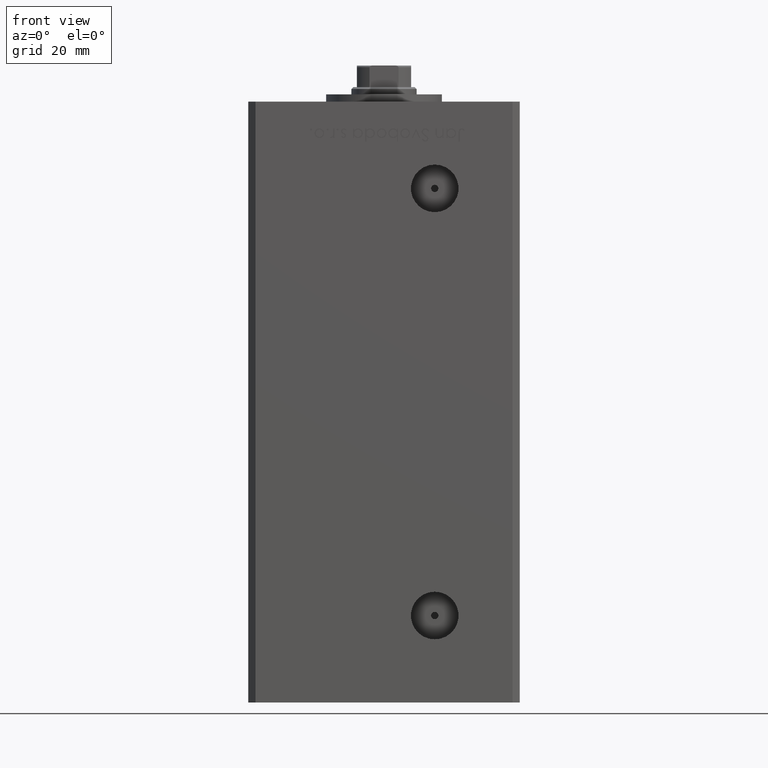
[diagram: clean part render]
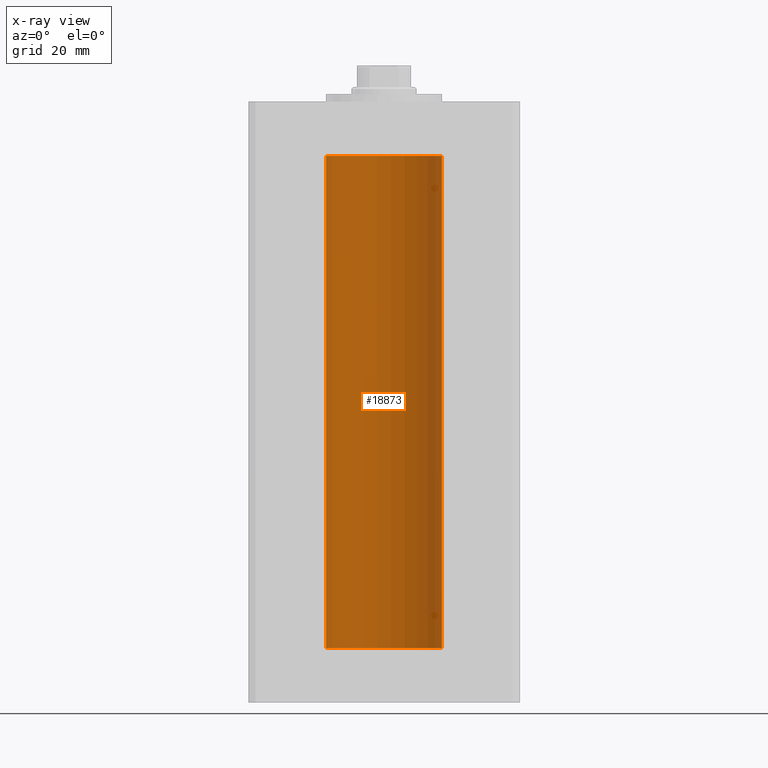
[diagram: x-ray — body ghosted, one internal face saturated and labeled with its STEP entity id]
A machine part, front view, then the same camera in x-ray: the body is ghosted and one INTERNAL B-rep face — a face not visible from any outside direction — is saturated and labeled: STEP entity #18873.
In plain terms, the highlighted cylindrical surface (partial cylindrical patch) has radius 16 mm, axis along (-0, -0, -1).
Its self-contained STEP definition (entity closure, byte-faithful):
#2634 = VERTEX_POINT ( 'NONE', #2691 ) ;
#2691 = CARTESIAN_POINT ( 'NONE',  ( -16.00000000000000000, 0.000000000000000000, 136.0000000000000000 ) ) ;
#6255 = EDGE_CURVE ( 'NONE', #2634, #16783, #40262, .T. ) ;
#8043 = CARTESIAN_POINT ( 'NONE',  ( 16.00000000000000000, 1.959434878635765131E-15, 136.0000000000000000 ) ) ;
#9560 = DIRECTION ( 'NONE',  ( 1.000000000000000000, 0.000000000000000000, 0.000000000000000000 ) ) ;
#12708 = VERTEX_POINT ( 'NONE', #13326 ) ;
#12932 = ORIENTED_EDGE ( 'NONE', *, *, #32817, .F. ) ;
#13326 = CARTESIAN_POINT ( 'NONE',  ( 16.00000000000000000, 1.959434878635765131E-15, 136.0000000000000000 ) ) ;
#14170 = DIRECTION ( 'NONE',  ( -0.000000000000000000, -0.000000000000000000, -1.000000000000000000 ) ) ;
#14496 = CARTESIAN_POINT ( 'NONE',  ( 0.000000000000000000, 0.000000000000000000, 136.0000000000000000 ) ) ;
#15631 = ORIENTED_EDGE ( 'NONE', *, *, #6255, .T. ) ;
#16783 = VERTEX_POINT ( 'NONE', #43213 ) ;
#17234 = CARTESIAN_POINT ( 'NONE',  ( 0.000000000000000000, 0.000000000000000000, 0.000000000000000000 ) ) ;
#17734 = VECTOR ( 'NONE', #19957, 1000.000000000000000 ) ;
#18873 = ADVANCED_FACE ( 'NONE', ( #34714 ), #26053, .F. ) ;
#19957 = DIRECTION ( 'NONE',  ( -0.000000000000000000, -0.000000000000000000, -1.000000000000000000 ) ) ;
#20563 = AXIS2_PLACEMENT_3D ( 'NONE', #17234, #40979, #9560 ) ;
#21446 = DIRECTION ( 'NONE',  ( -0.000000000000000000, -0.000000000000000000, -1.000000000000000000 ) ) ;
#21904 = DIRECTION ( 'NONE',  ( -0.000000000000000000, 0.000000000000000000, 1.000000000000000000 ) ) ;
#23123 = DIRECTION ( 'NONE',  ( -1.000000000000000000, 0.000000000000000000, 0.000000000000000000 ) ) ;
#23925 = AXIS2_PLACEMENT_3D ( 'NONE', #42143, #14170, #23123 ) ;
#24166 = CARTESIAN_POINT ( 'NONE',  ( -16.00000000000000000, 0.000000000000000000, 136.0000000000000000 ) ) ;
#26053 = CYLINDRICAL_SURFACE ( 'NONE', #23925, 16.00000000000000000 ) ;
#27645 = CARTESIAN_POINT ( 'NONE',  ( 16.00000000000000000, 1.959434878635765131E-15, 0.000000000000000000 ) ) ;
#29310 = AXIS2_PLACEMENT_3D ( 'NONE', #14496, #21904, #45641 ) ;
#31504 = CIRCLE ( 'NONE', #20563, 16.00000000000000000 ) ;
#31936 = EDGE_LOOP ( 'NONE', ( #43570, #35104, #15631, #12932 ) ) ;
#32817 = EDGE_CURVE ( 'NONE', #39671, #16783, #31504, .T. ) ;
#34714 = FACE_OUTER_BOUND ( 'NONE', #31936, .T. ) ;
#35104 = ORIENTED_EDGE ( 'NONE', *, *, #49189, .T. ) ;
#35322 = EDGE_CURVE ( 'NONE', #12708, #39671, #49131, .T. ) ;
#39671 = VERTEX_POINT ( 'NONE', #27645 ) ;
#40262 = LINE ( 'NONE', #24166, #17734 ) ;
#40979 = DIRECTION ( 'NONE',  ( -0.000000000000000000, 0.000000000000000000, 1.000000000000000000 ) ) ;
#42143 = CARTESIAN_POINT ( 'NONE',  ( 0.000000000000000000, 0.000000000000000000, 136.0000000000000000 ) ) ;
#42545 = VECTOR ( 'NONE', #21446, 1000.000000000000000 ) ;
#43213 = CARTESIAN_POINT ( 'NONE',  ( -16.00000000000000000, 0.000000000000000000, 0.000000000000000000 ) ) ;
#43570 = ORIENTED_EDGE ( 'NONE', *, *, #35322, .F. ) ;
#45641 = DIRECTION ( 'NONE',  ( 1.000000000000000000, 0.000000000000000000, 0.000000000000000000 ) ) ;
#49131 = LINE ( 'NONE', #8043, #42545 ) ;
#49189 = EDGE_CURVE ( 'NONE', #12708, #2634, #50361, .T. ) ;
#50361 = CIRCLE ( 'NONE', #29310, 16.00000000000000000 ) ;